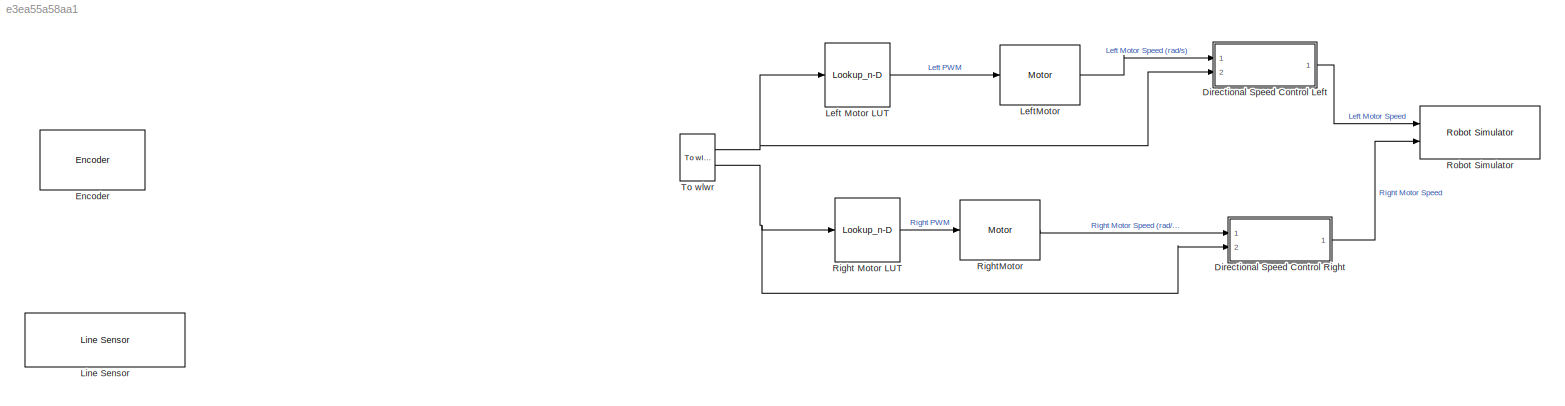
MODEL slx_e3ea55a58aa1
KIND model
CONFIG AbsTol = auto
CONFIG EnableMultiTasking = off
CONFIG FixedStep = 0.01
CONFIG MaxStep = auto
CONFIG MinStep = auto
CONFIG RelTol = 1e-3
CONFIG SampleTimeConstraint = Unconstrained
CONFIG SolverName = FixedStepDiscrete
CONFIG StartTime = 0.0
CONFIG StopTime = 30
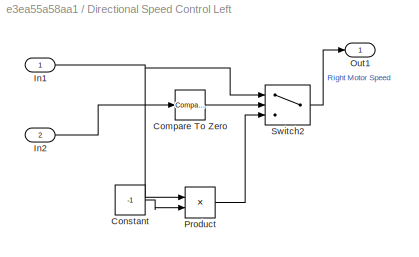
BLOCK [SubSystem] Directional Speed Control Left
  Ports = [2, 1]
  RequestExecContextInheritance = off
BLOCK [Reference] Directional Speed Control Left/Compare To Zero  REF=simulink/Logic and Bit
Operations/Compare
To Zero
  Ports = [1, 1]
  SourceBlock = simulink/Logic and Bit\nOperations/Compare\nTo Zero
  SourceProductBaseCode = SL
  SourceType = Compare To Zero
BLOCK [Constant] Directional Speed Control Left/Constant
  Value = -1
BLOCK [Inport] Directional Speed Control Left/In1
BLOCK [Inport] Directional Speed Control Left/In2
  Port = 2
BLOCK [Outport] Directional Speed Control Left/Out1
BLOCK [Product] Directional Speed Control Left/Product
  Ports = [2, 1]
BLOCK [Switch] Directional Speed Control Left/Switch2
  Criteria = u2 > Threshold
  InputSameDT = off
  SaturateOnIntegerOverflow = off
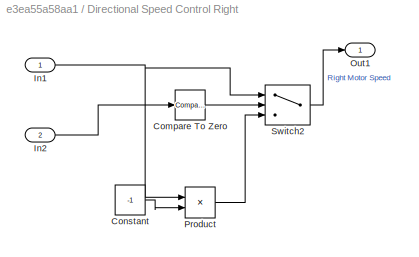
BLOCK [SubSystem] Directional Speed Control Right
  Ports = [2, 1]
  RequestExecContextInheritance = off
BLOCK [Reference] Directional Speed Control Right/Compare To Zero  REF=simulink/Logic and Bit
Operations/Compare
To Zero
  Ports = [1, 1]
  SourceBlock = simulink/Logic and Bit\nOperations/Compare\nTo Zero
  SourceProductBaseCode = SL
  SourceType = Compare To Zero
BLOCK [Constant] Directional Speed Control Right/Constant
  Value = -1
BLOCK [Inport] Directional Speed Control Right/In1
BLOCK [Inport] Directional Speed Control Right/In2
  Port = 2
BLOCK [Outport] Directional Speed Control Right/Out1
BLOCK [Product] Directional Speed Control Right/Product
  Ports = [2, 1]
BLOCK [Switch] Directional Speed Control Right/Switch2
  Criteria = u2 > Threshold
  InputSameDT = off
  SaturateOnIntegerOverflow = off
BLOCK [Reference] Encoder  REF=mobileRoboticsTrainingLib/Encoder
  Ports = [0, 2]
  SourceBlock = mobileRoboticsTrainingLib/Encoder
  SourceProductName = Mobile Robotics Training Library
  SourceType = Encoder Simulation
BLOCK [Lookup_n-D] Left Motor LUT
  BreakpointsForDimension1 = WheelSpeed
  ExtrapMethod = Clip
  InputPortMap = u0
  InternalRulePriority = Speed
  InterpMethod = Nearest
  NumberOfTableDimensions = 1
  Ports = [1, 1]
  RndMeth = Simplest
  Table = InputPWM
BLOCK [Reference] LeftMotor  REF=mobileRoboticsTrainingLib/Motor
  Ports = [1, 1]
  SourceBlock = mobileRoboticsTrainingLib/Motor
  SourceProductName = Mobile Robotics Training Library
  SourceType = Motor Model
BLOCK [Reference] Line Sensor  REF=mobileRoboticsTrainingLib/Line Sensor
  Ports = [0, 1]
  SourceBlock = mobileRoboticsTrainingLib/Line Sensor
  SourceProductName = Mobile Robotics Training Library
  SourceType = Line Sensor Simulation
BLOCK [Lookup_n-D] Right Motor LUT
  BreakpointsForDimension1 = WheelSpeed
  ExtrapMethod = Clip
  InputPortMap = u0
  InternalRulePriority = Speed
  InterpMethod = Nearest
  NumberOfTableDimensions = 1
  Ports = [1, 1]
  RndMeth = Simplest
  Table = InputPWM
BLOCK [Reference] RightMotor  REF=mobileRoboticsTrainingLib/Motor
  Ports = [1, 1]
  SourceBlock = mobileRoboticsTrainingLib/Motor
  SourceProductName = Mobile Robotics Training Library
  SourceType = Motor Model
BLOCK [Reference] Robot Simulator  REF=mobileRoboticsTrainingLib/Robot Simulator
  Ports = [2]
  Priority = 99
  SourceBlock = mobileRoboticsTrainingLib/Robot Simulator
  SourceProductName = Mobile Robotics Training Library
  SourceType = Robot Simulator
BLOCK [Reference] To wlwr  REF=mobileRoboticsTrainingLib/To wlwr
  Ports = [2, 2]
  SourceBlock = mobileRoboticsTrainingLib/To wlwr
  SourceProductName = Mobile Robotics Training Library
  SourceType = To wlwr
LINE Directional Speed Control Left/Compare To Zero:1 -> Directional Speed Control Left/Switch2:2
LINE Directional Speed Control Left/Constant:1 -> Directional Speed Control Left/Product:2
NET Directional Speed Control Left/In1:1 -> Directional Speed Control Left/Product:1, Directional Speed Control Left/Switch2:1
LINE Directional Speed Control Left/In2:1 -> Directional Speed Control Left/Compare To Zero:1
LINE Directional Speed Control Left/Product:1 -> Directional Speed Control Left/Switch2:3
LINE Directional Speed Control Left/Switch2:1 -> Directional Speed Control Left/Out1:1
LINE Directional Speed Control Left:1 -> Robot Simulator:1
LINE Directional Speed Control Right/Compare To Zero:1 -> Directional Speed Control Right/Switch2:2
LINE Directional Speed Control Right/Constant:1 -> Directional Speed Control Right/Product:2
NET Directional Speed Control Right/In1:1 -> Directional Speed Control Right/Product:1, Directional Speed Control Right/Switch2:1
LINE Directional Speed Control Right/In2:1 -> Directional Speed Control Right/Compare To Zero:1
LINE Directional Speed Control Right/Product:1 -> Directional Speed Control Right/Switch2:3
LINE Directional Speed Control Right/Switch2:1 -> Directional Speed Control Right/Out1:1
LINE Directional Speed Control Right:1 -> Robot Simulator:2
LINE Left Motor LUT:1 -> LeftMotor:1
LINE LeftMotor:1 -> Directional Speed Control Left:1
LINE Right Motor LUT:1 -> RightMotor:1
LINE RightMotor:1 -> Directional Speed Control Right:1
NET To wlwr:1 -> Directional Speed Control Left:2, Left Motor LUT:1
NET To wlwr:2 -> Directional Speed Control Right:2, Right Motor LUT:1
note: NET lines group one-source signal fan-out (src -> all destinations, sorted); 1:1 wires keep LINE
